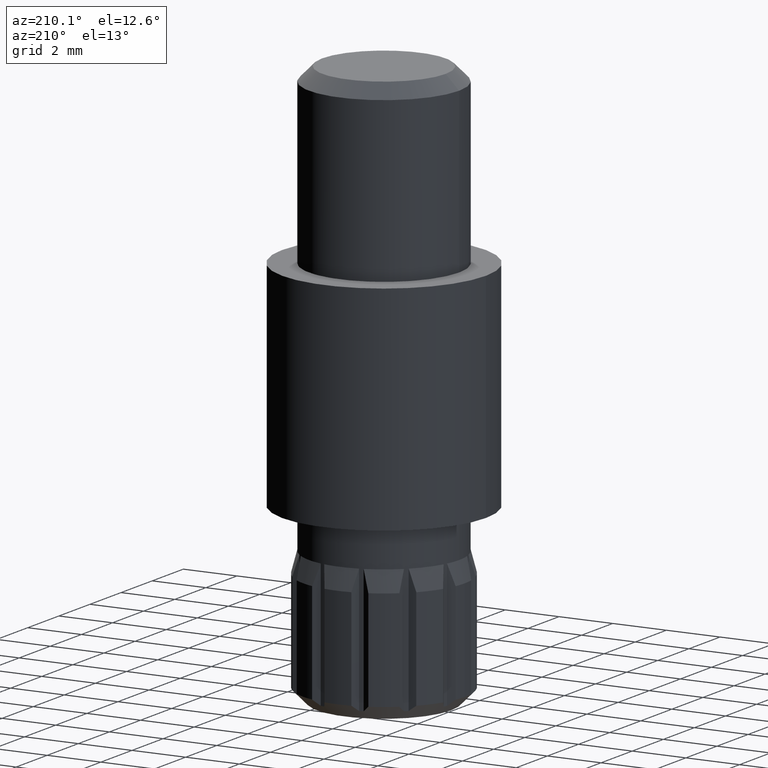
[diagram: clean part render]
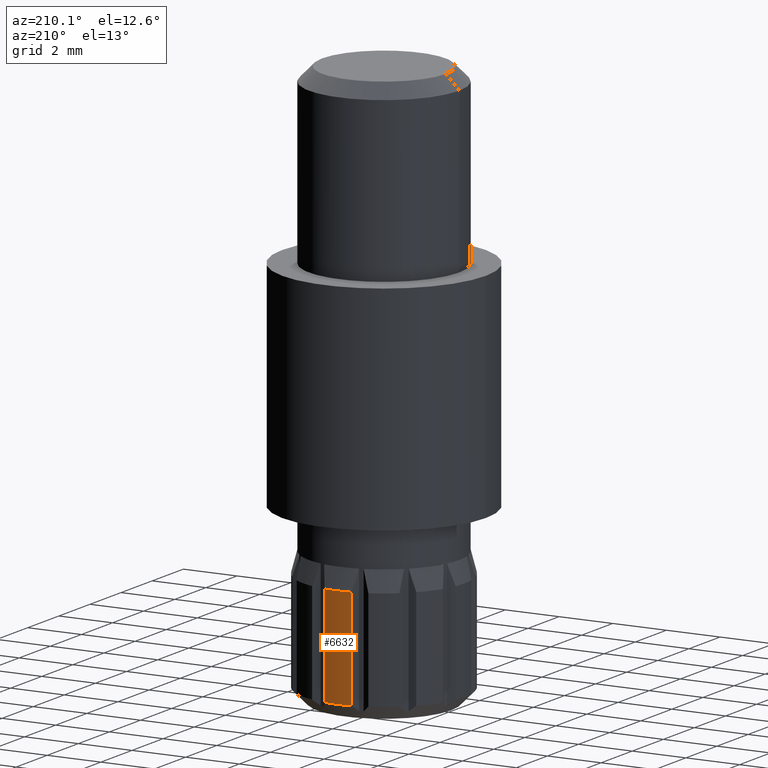
[diagram: same view with one face highlighted and labeled with its STEP entity id]
A machine part, auxiliary view. The second image highlights one B-rep face of the part: STEP entity #6632.
In plain terms, the highlighted cylindrical surface (partial cylindrical patch) has radius 3 mm, axis along (0, 0, -1).
Its self-contained STEP definition (entity closure, byte-faithful):
#323 = ORIENTED_EDGE ( 'NONE', *, *, #3366, .T. ) ;
#830 = CIRCLE ( 'NONE', #3101, 3.000000000000000900 ) ;
#1441 = LINE ( 'NONE', #2529, #11744 ) ;
#1698 = CARTESIAN_POINT ( 'NONE',  ( 0.0000000000000000000, 0.0000000000000000000, 5.000000000000000000 ) ) ;
#2196 = CIRCLE ( 'NONE', #2717, 3.000000000000000000 ) ;
#2286 = FACE_OUTER_BOUND ( 'NONE', #4740, .T. ) ;
#2529 = CARTESIAN_POINT ( 'NONE',  ( 0.4999999999999998900, 2.958039891549808500, 5.000000000000000000 ) ) ;
#2717 = AXIS2_PLACEMENT_3D ( 'NONE', #10593, #4616, #11588 ) ;
#2885 = CARTESIAN_POINT ( 'NONE',  ( 0.4999999999999998900, 2.958039891549809000, 0.4999999999999998900 ) ) ;
#2945 = DIRECTION ( 'NONE',  ( 0.0000000000000000000, 0.0000000000000000000, -1.000000000000000000 ) ) ;
#3101 = AXIS2_PLACEMENT_3D ( 'NONE', #3986, #10958, #4990 ) ;
#3366 = EDGE_CURVE ( 'NONE', #7574, #10611, #830, .T. ) ;
#3879 = EDGE_CURVE ( 'NONE', #10611, #8618, #1441, .T. ) ;
#3986 = CARTESIAN_POINT ( 'NONE',  ( 0.0000000000000000000, 0.0000000000000000000, 4.250000000000000000 ) ) ;
#4198 = EDGE_CURVE ( 'NONE', #7574, #5668, #4870, .T. ) ;
#4616 = DIRECTION ( 'NONE',  ( -0.0000000000000000000, -0.0000000000000000000, -1.000000000000000000 ) ) ;
#4642 = CYLINDRICAL_SURFACE ( 'NONE', #9301, 3.000000000000000400 ) ;
#4740 = EDGE_LOOP ( 'NONE', ( #323, #6753, #6188, #9195 ) ) ;
#4870 = LINE ( 'NONE', #9916, #9853 ) ;
#4924 = EDGE_CURVE ( 'NONE', #5668, #8618, #2196, .T. ) ;
#4990 = DIRECTION ( 'NONE',  ( -1.000000000000000000, 0.0000000000000000000, 0.0000000000000000000 ) ) ;
#5458 = CARTESIAN_POINT ( 'NONE',  ( -0.5000000000000000000, 2.958039891549808100, 0.4999999999999998900 ) ) ;
#5668 = VERTEX_POINT ( 'NONE', #5458 ) ;
#6188 = ORIENTED_EDGE ( 'NONE', *, *, #4924, .F. ) ;
#6632 = ADVANCED_FACE ( 'NONE', ( #2286 ), #4642, .T. ) ;
#6753 = ORIENTED_EDGE ( 'NONE', *, *, #3879, .T. ) ;
#7574 = VERTEX_POINT ( 'NONE', #7793 ) ;
#7678 = DIRECTION ( 'NONE',  ( -1.000000000000000000, 0.0000000000000000000, 0.0000000000000000000 ) ) ;
#7793 = CARTESIAN_POINT ( 'NONE',  ( -0.4999999999999993300, 2.958039891549809400, 4.250000000000000000 ) ) ;
#8618 = VERTEX_POINT ( 'NONE', #2885 ) ;
#9195 = ORIENTED_EDGE ( 'NONE', *, *, #4198, .F. ) ;
#9301 = AXIS2_PLACEMENT_3D ( 'NONE', #1698, #9657, #7678 ) ;
#9657 = DIRECTION ( 'NONE',  ( 0.0000000000000000000, 0.0000000000000000000, -1.000000000000000000 ) ) ;
#9853 = VECTOR ( 'NONE', #2945, 1000.000000000000000 ) ;
#9916 = CARTESIAN_POINT ( 'NONE',  ( -0.5000000000000001100, 2.958039891549808500, 5.000000000000000000 ) ) ;
#10593 = CARTESIAN_POINT ( 'NONE',  ( 0.0000000000000000000, 0.0000000000000000000, 0.4999999999999998900 ) ) ;
#10611 = VERTEX_POINT ( 'NONE', #12401 ) ;
#10958 = DIRECTION ( 'NONE',  ( -0.0000000000000000000, -0.0000000000000000000, -1.000000000000000000 ) ) ;
#11517 = DIRECTION ( 'NONE',  ( 0.0000000000000000000, 0.0000000000000000000, -1.000000000000000000 ) ) ;
#11588 = DIRECTION ( 'NONE',  ( -1.000000000000000000, 0.0000000000000000000, 0.0000000000000000000 ) ) ;
#11744 = VECTOR ( 'NONE', #11517, 1000.000000000000000 ) ;
#12401 = CARTESIAN_POINT ( 'NONE',  ( 0.4999999999999998900, 2.958039891549809000, 4.250000000000000000 ) ) ;